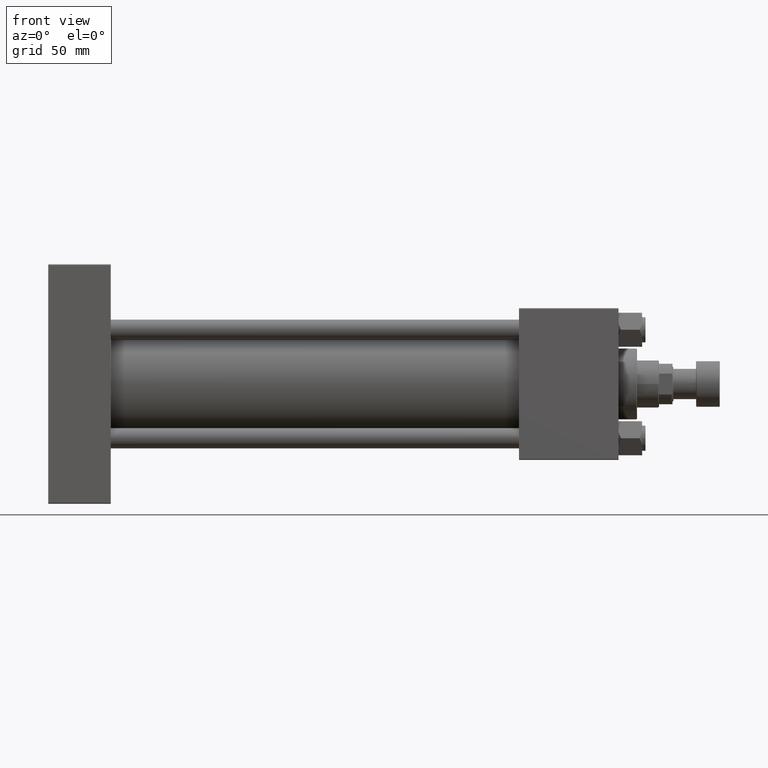
[diagram: clean part render]
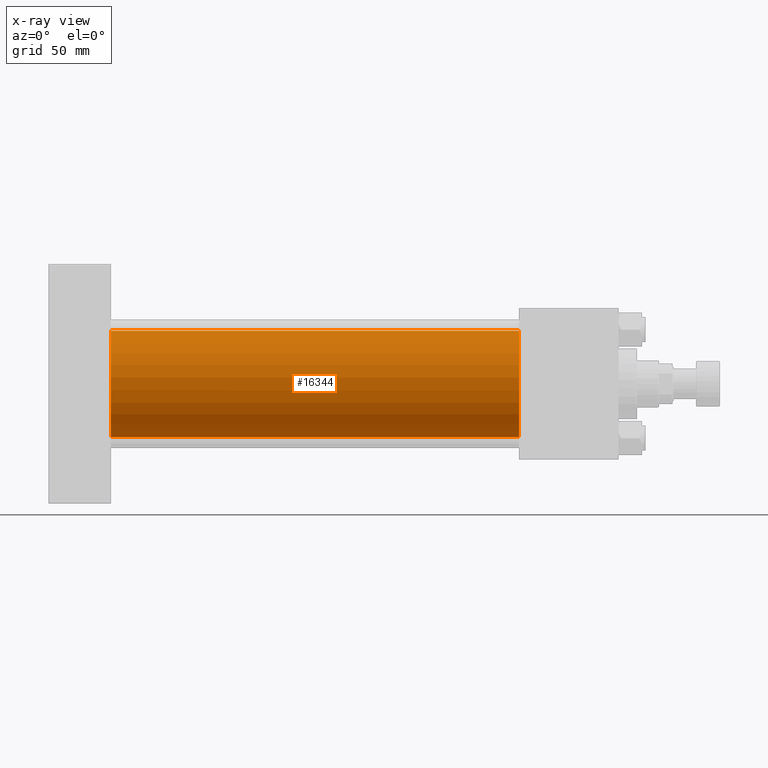
[diagram: x-ray — body ghosted, one internal face saturated and labeled with its STEP entity id]
A machine part, front view, then the same camera in x-ray: the body is ghosted and one INTERNAL B-rep face — a face not visible from any outside direction — is saturated and labeled: STEP entity #16344.
In plain terms, the highlighted cylindrical surface (partial cylindrical patch) has radius 31.5 mm, axis along (-1, -0, -0).
Its self-contained STEP definition (entity closure, byte-faithful):
#1044 = ORIENTED_EDGE ( 'NONE', *, *, #21802, .F. ) ;
#5154 = CYLINDRICAL_SURFACE ( 'NONE', #37244, 31.50000000000000000 ) ;
#6022 = DIRECTION ( 'NONE',  ( 1.000000000000000000, 0.000000000000000000, 0.000000000000000000 ) ) ;
#6771 = CIRCLE ( 'NONE', #24607, 31.50000000000000000 ) ;
#6911 = DIRECTION ( 'NONE',  ( -1.000000000000000000, -0.000000000000000000, -0.000000000000000000 ) ) ;
#9466 = VERTEX_POINT ( 'NONE', #24858 ) ;
#16344 = ADVANCED_FACE ( 'NONE', ( #50322 ), #5154, .F. ) ;
#17196 = LINE ( 'NONE', #45379, #34833 ) ;
#17338 = EDGE_CURVE ( 'NONE', #49113, #18202, #50871, .T. ) ;
#17779 = AXIS2_PLACEMENT_3D ( 'NONE', #41901, #6022, #36935 ) ;
#18202 = VERTEX_POINT ( 'NONE', #46815 ) ;
#18551 = EDGE_CURVE ( 'NONE', #34932, #9466, #6771, .T. ) ;
#20672 = DIRECTION ( 'NONE',  ( 0.000000000000000000, 0.000000000000000000, -1.000000000000000000 ) ) ;
#21802 = EDGE_CURVE ( 'NONE', #34932, #49113, #42785, .T. ) ;
#22856 = CARTESIAN_POINT ( 'NONE',  ( 278.9999999999999432, -2.602085213965210642E-15, 31.50000000000000000 ) ) ;
#23470 = VECTOR ( 'NONE', #6911, 1000.000000000000000 ) ;
#24082 = CARTESIAN_POINT ( 'NONE',  ( 37.00000000000000000, -2.602085213965210642E-15, 31.50000000000000000 ) ) ;
#24607 = AXIS2_PLACEMENT_3D ( 'NONE', #29158, #41125, #20672 ) ;
#24858 = CARTESIAN_POINT ( 'NONE',  ( 278.9999999999999432, 1.255552203348951850E-15, -31.50000000000000000 ) ) ;
#25948 = DIRECTION ( 'NONE',  ( -1.000000000000000000, -0.000000000000000000, -0.000000000000000000 ) ) ;
#29158 = CARTESIAN_POINT ( 'NONE',  ( 278.9999999999999432, -2.602085213965210642E-15, 0.000000000000000000 ) ) ;
#32314 = CARTESIAN_POINT ( 'NONE',  ( 278.9999999999999432, -2.602085213965210642E-15, 0.000000000000000000 ) ) ;
#34544 = EDGE_CURVE ( 'NONE', #9466, #18202, #17196, .T. ) ;
#34833 = VECTOR ( 'NONE', #25948, 1000.000000000000000 ) ;
#34932 = VERTEX_POINT ( 'NONE', #43334 ) ;
#36935 = DIRECTION ( 'NONE',  ( 0.000000000000000000, 0.000000000000000000, -1.000000000000000000 ) ) ;
#37244 = AXIS2_PLACEMENT_3D ( 'NONE', #32314, #48543, #44560 ) ;
#38766 = ORIENTED_EDGE ( 'NONE', *, *, #34544, .T. ) ;
#41125 = DIRECTION ( 'NONE',  ( 1.000000000000000000, 0.000000000000000000, 0.000000000000000000 ) ) ;
#41465 = ORIENTED_EDGE ( 'NONE', *, *, #18551, .T. ) ;
#41901 = CARTESIAN_POINT ( 'NONE',  ( 37.00000000000000000, -2.602085213965210642E-15, 0.000000000000000000 ) ) ;
#42785 = LINE ( 'NONE', #22856, #23470 ) ;
#43334 = CARTESIAN_POINT ( 'NONE',  ( 278.9999999999999432, -2.602085213965210642E-15, 31.50000000000000000 ) ) ;
#44560 = DIRECTION ( 'NONE',  ( 0.000000000000000000, 0.000000000000000000, 1.000000000000000000 ) ) ;
#45118 = ORIENTED_EDGE ( 'NONE', *, *, #17338, .F. ) ;
#45379 = CARTESIAN_POINT ( 'NONE',  ( 278.9999999999999432, 1.255552203348951850E-15, -31.50000000000000000 ) ) ;
#46815 = CARTESIAN_POINT ( 'NONE',  ( 37.00000000000000000, 1.255552203348951850E-15, -31.50000000000000000 ) ) ;
#48543 = DIRECTION ( 'NONE',  ( -1.000000000000000000, -0.000000000000000000, -0.000000000000000000 ) ) ;
#49113 = VERTEX_POINT ( 'NONE', #24082 ) ;
#50322 = FACE_OUTER_BOUND ( 'NONE', #52214, .T. ) ;
#50871 = CIRCLE ( 'NONE', #17779, 31.50000000000000000 ) ;
#52214 = EDGE_LOOP ( 'NONE', ( #41465, #38766, #45118, #1044 ) ) ;